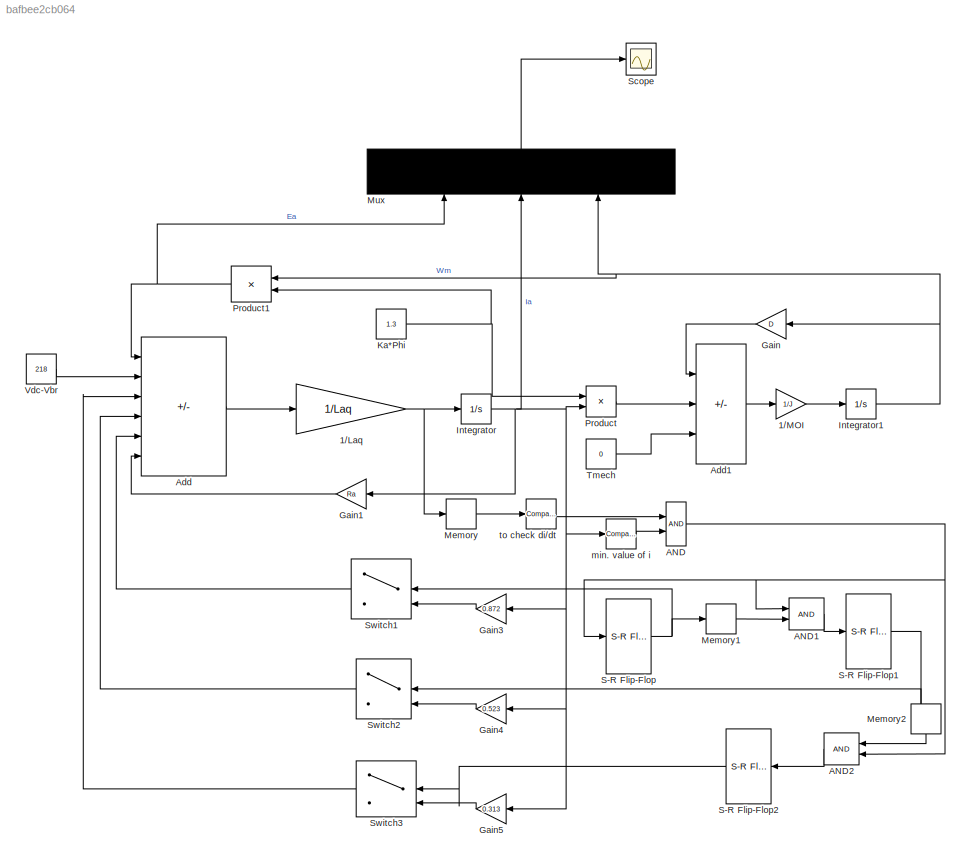
MODEL slx_bafbee2cb064
KIND model
CONFIG AbsTol = auto
CONFIG EnableMultiTasking = off
CONFIG FixedStep = auto
CONFIG MaxStep = auto
CONFIG MinStep = auto
CONFIG RelTol = 1e-3
CONFIG SampleTimeConstraint = Unconstrained
CONFIG SolverName = VariableStepAuto
CONFIG StartTime = 0.0
CONFIG StopTime = 10.0
BLOCK [Gain] 1//Laq
  Gain = 1/Laq
BLOCK [Gain] 1//MOI
  Gain = 1/J
BLOCK [Logic] AND
  AllPortsSameDT = off
  IconShape = distinctive
  OutDataTypeStr = boolean
BLOCK [Logic] AND1
  AllPortsSameDT = off
  IconShape = distinctive
  OutDataTypeStr = boolean
BLOCK [Logic] AND2
  AllPortsSameDT = off
  IconShape = distinctive
  NameLocation = top
  OutDataTypeStr = boolean
BLOCK [Sum] Add
  IconShape = rectangular
  Inputs = -+----
BLOCK [Sum] Add1
  IconShape = rectangular
  Inputs = -++
BLOCK [Gain] Gain
  Gain = D
  NameLocation = top
BLOCK [Gain] Gain1
  Gain = Ra
  NameLocation = top
BLOCK [Gain] Gain3
  Gain = 0.872
  NameLocation = top
BLOCK [Gain] Gain4
  Gain = 0.523
  NameLocation = top
BLOCK [Gain] Gain5
  Gain = 0.313
  NameLocation = top
BLOCK [Integrator] Integrator
BLOCK [Integrator] Integrator1
BLOCK [Constant] Ka*Phi
  Value = 1.3
BLOCK [Memory] Memory
BLOCK [Memory] Memory1
BLOCK [Memory] Memory2
  NameLocation = left
BLOCK [Mux] Mux
  DisplayOption = bar
  Inputs = 3
  NameLocation = right
BLOCK [Product] Product
BLOCK [Product] Product1
  NameLocation = top
BLOCK [Reference] S-R Flip-Flop  REF=simulink_extras/Flip Flops/S-R
Flip-Flop
  SourceBlock = simulink_extras/Flip Flops/S-R\nFlip-Flop
  SourceType = SRFlipFlop
BLOCK [Reference] S-R Flip-Flop1  REF=simulink_extras/Flip Flops/S-R
Flip-Flop
  SourceBlock = simulink_extras/Flip Flops/S-R\nFlip-Flop
  SourceType = SRFlipFlop
BLOCK [Reference] S-R Flip-Flop2  REF=simulink_extras/Flip Flops/S-R
Flip-Flop
  NameLocation = top
  SourceBlock = simulink_extras/Flip Flops/S-R\nFlip-Flop
  SourceType = SRFlipFlop
BLOCK [Scope] Scope
  Floating = off
  NumInputPorts = 1
  ScopeSpecificationString = Simulink.scopes.TimeScopeBlockCfg('CurrentConfiguration', extmgr.ConfigurationSet(extmgr.Configuration('Core','General UI',true),extmgr.Configuration('Core','Source UI',true),extmgr.Configuration('Sources','WiredSimulink',true),extmgr.Configuration('Visuals','Time Domain',true,'SerializedDisplays',{struct('MinYLimReal','-77.36652','MaxYLimReal','220.15303','YLabelReal','','MinYLimMag','0.00000','M...<+1440ch>
BLOCK [Switch] Switch1
  InputSameDT = off
  NameLocation = top
  SaturateOnIntegerOverflow = off
BLOCK [Switch] Switch2
  InputSameDT = off
  NameLocation = top
  SaturateOnIntegerOverflow = off
BLOCK [Switch] Switch3
  InputSameDT = off
  NameLocation = top
  SaturateOnIntegerOverflow = off
BLOCK [Constant] Tmech
  Value = 0
BLOCK [Constant] Vdc-Vbr
  Value = 218
BLOCK [Reference] min. value of i  REF=simulink/Logic and Bit
Operations/Compare
To Constant
  SourceBlock = simulink/Logic and Bit\nOperations/Compare\nTo Constant
  SourceType = Compare To Constant
BLOCK [Reference] to check di//dt  REF=hdlsllib/Logic and Bit
Operations/Compare
To Zero
  SourceBlock = hdlsllib/Logic and Bit\nOperations/Compare\nTo Zero
  SourceType = Compare To Zero
NET 1//Laq:1 -> Integrator:1, Memory:1
LINE 1//MOI:1 -> Integrator1:1
LINE AND1:1 -> S-R Flip-Flop1:1
LINE AND2:1 -> S-R Flip-Flop2:1
NET AND:1 -> AND1:1, AND2:2, S-R Flip-Flop:1
LINE Add1:1 -> 1//MOI:1
LINE Add:1 -> 1//Laq:1
LINE Gain1:1 -> Add:6
LINE Gain3:1 -> Switch1:3
LINE Gain4:1 -> Switch2:3
LINE Gain5:1 -> Switch3:3
LINE Gain:1 -> Add1:1
NET Integrator1:1 -> Gain:1, Mux:3, Product1:1
NET Integrator:1 -> Gain1:1, Gain3:1, Gain4:1, Gain5:1, Mux:2, Product:2, min. value of i:1
NET Ka*Phi:1 -> Product1:2, Product:1
LINE Memory1:1 -> AND1:2
LINE Memory2:1 -> AND2:1
LINE Memory:1 -> to check di//dt:1
LINE Mux:1 -> Scope:1
NET Product1:1 -> Add:1, Mux:1
LINE Product:1 -> Add1:2
NET S-R Flip-Flop1:1 -> Memory2:1, Switch2:2
LINE S-R Flip-Flop2:1 -> Switch3:2
NET S-R Flip-Flop:1 -> Memory1:1, Switch1:2
LINE Switch1:1 -> Add:5
LINE Switch2:1 -> Add:4
LINE Switch3:1 -> Add:3
LINE Tmech:1 -> Add1:3
LINE Vdc-Vbr:1 -> Add:2
LINE min. value of i:1 -> AND:2
LINE to check di//dt:1 -> AND:1
note: NET lines group one-source signal fan-out (src -> all destinations, sorted); 1:1 wires keep LINE
